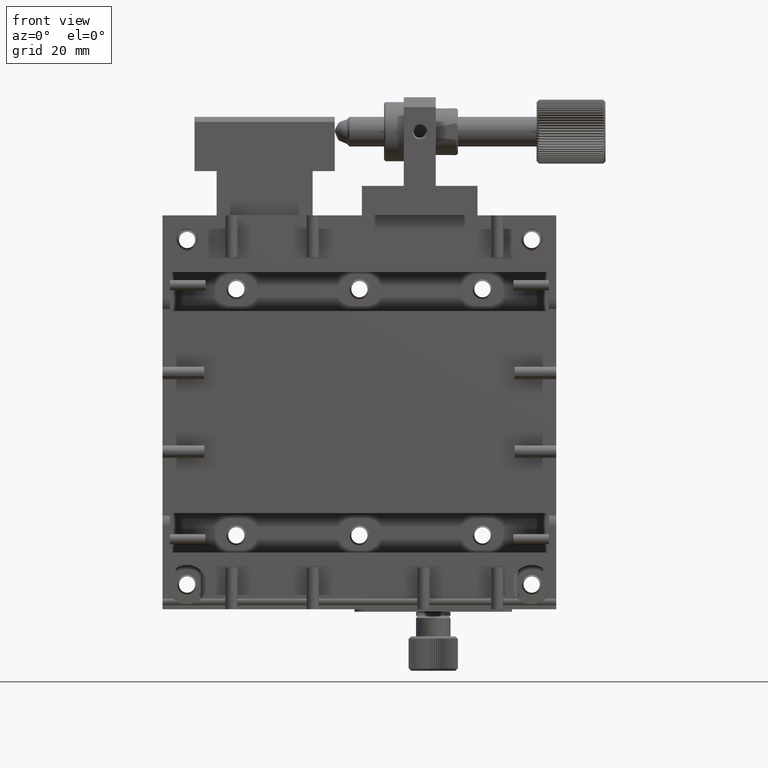
[diagram: clean part render]
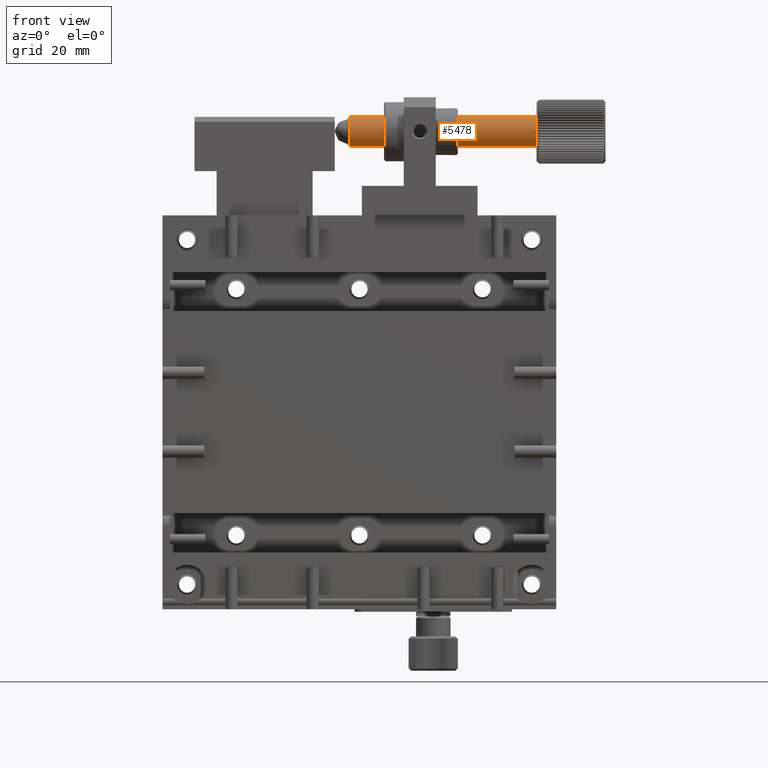
[diagram: same view with one face highlighted and labeled with its STEP entity id]
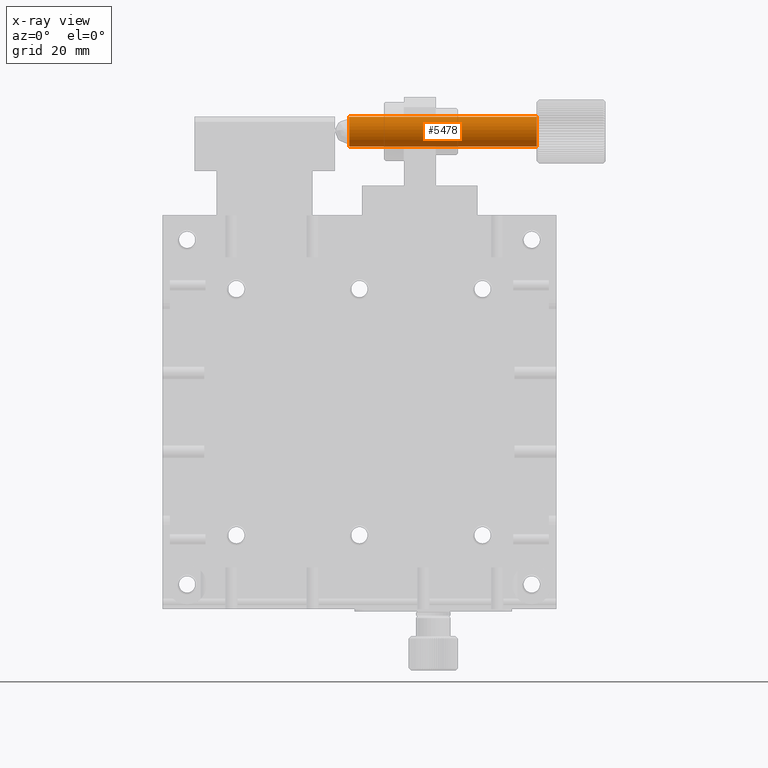
[diagram: x-ray of the same camera — body ghosted, the highlighted face saturated]
A machine part, front view. The second image highlights one B-rep face of the part: STEP entity #5478.
The next image is the same camera in x-ray: the body ghosted, the highlighted face saturated — about 0% of this face is hidden behind the body in this view.
In plain terms, the highlighted cylindrical surface (bore or boss wall) has radius 3 mm, axis along (-1, -0, -0).
Its self-contained STEP definition (entity closure, byte-faithful):
#2485 = CIRCLE ( 'NONE', #15393, 3.000000000000002665 ) ;
#2495 = FACE_OUTER_BOUND ( 'NONE', #5423, .T. ) ;
#2822 = CARTESIAN_POINT ( 'NONE',  ( 35.52852657937573611, 1.456824835573184540, 57.00000000000001421 ) ) ;
#4306 = CARTESIAN_POINT ( 'NONE',  ( -5.471473420624269224, 1.456824835573182098, 57.00000000000000711 ) ) ;
#5187 = ORIENTED_EDGE ( 'NONE', *, *, #7304, .T. ) ;
#5423 = EDGE_LOOP ( 'NONE', ( #20451 ) ) ;
#5478 = ADVANCED_FACE ( 'NONE', ( #20807, #2495 ), #18246, .T. ) ;
#6702 = EDGE_CURVE ( 'NONE', #15655, #15655, #2485, .T. ) ;
#7037 = EDGE_LOOP ( 'NONE', ( #5187 ) ) ;
#7304 = EDGE_CURVE ( 'NONE', #20697, #20697, #12908, .T. ) ;
#8202 = DIRECTION ( 'NONE',  ( 0.000000000000000000, 0.000000000000000000, 1.000000000000000000 ) ) ;
#10638 = DIRECTION ( 'NONE',  ( 0.000000000000000000, 0.000000000000000000, 1.000000000000000000 ) ) ;
#10889 = DIRECTION ( 'NONE',  ( -1.000000000000000000, -5.724587470723463412E-17, -1.110223024625156540E-16 ) ) ;
#12908 = CIRCLE ( 'NONE', #19125, 3.000000000000002665 ) ;
#13698 = CARTESIAN_POINT ( 'NONE',  ( -2.471473420624267447, 1.456824835573182320, 60.00000000000001421 ) ) ;
#15393 = AXIS2_PLACEMENT_3D ( 'NONE', #23735, #21782, #20605 ) ;
#15655 = VERTEX_POINT ( 'NONE', #13698 ) ;
#16432 = CARTESIAN_POINT ( 'NONE',  ( 35.52852657937573611, 1.456824835573184540, 60.00000000000002132 ) ) ;
#16439 = DIRECTION ( 'NONE',  ( -1.000000000000000000, -5.724587470723463412E-17, -1.110223024625156540E-16 ) ) ;
#18246 = CYLINDRICAL_SURFACE ( 'NONE', #19907, 3.000000000000002665 ) ;
#19125 = AXIS2_PLACEMENT_3D ( 'NONE', #2822, #10889, #10638 ) ;
#19907 = AXIS2_PLACEMENT_3D ( 'NONE', #4306, #16439, #8202 ) ;
#20451 = ORIENTED_EDGE ( 'NONE', *, *, #6702, .T. ) ;
#20605 = DIRECTION ( 'NONE',  ( -1.445602896647337931E-16, 0.000000000000000000, 1.000000000000000000 ) ) ;
#20697 = VERTEX_POINT ( 'NONE', #16432 ) ;
#20807 = FACE_OUTER_BOUND ( 'NONE', #7037, .T. ) ;
#21782 = DIRECTION ( 'NONE',  ( 1.000000000000000000, 5.724587470723463412E-17, 1.110223024625156540E-16 ) ) ;
#23735 = CARTESIAN_POINT ( 'NONE',  ( -2.471473420624267003, 1.456824835573182320, 57.00000000000000711 ) ) ;